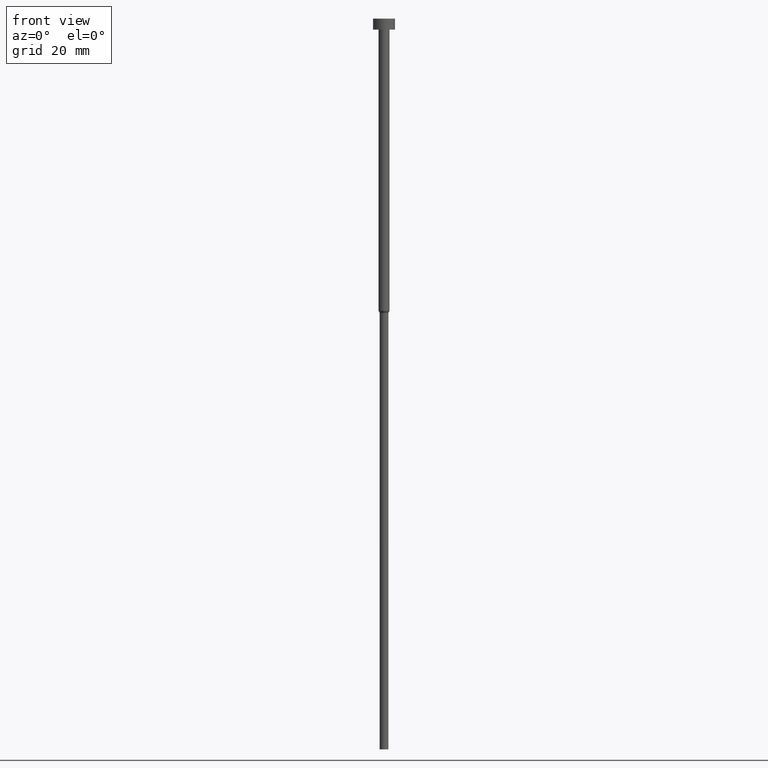
[diagram: clean part render]
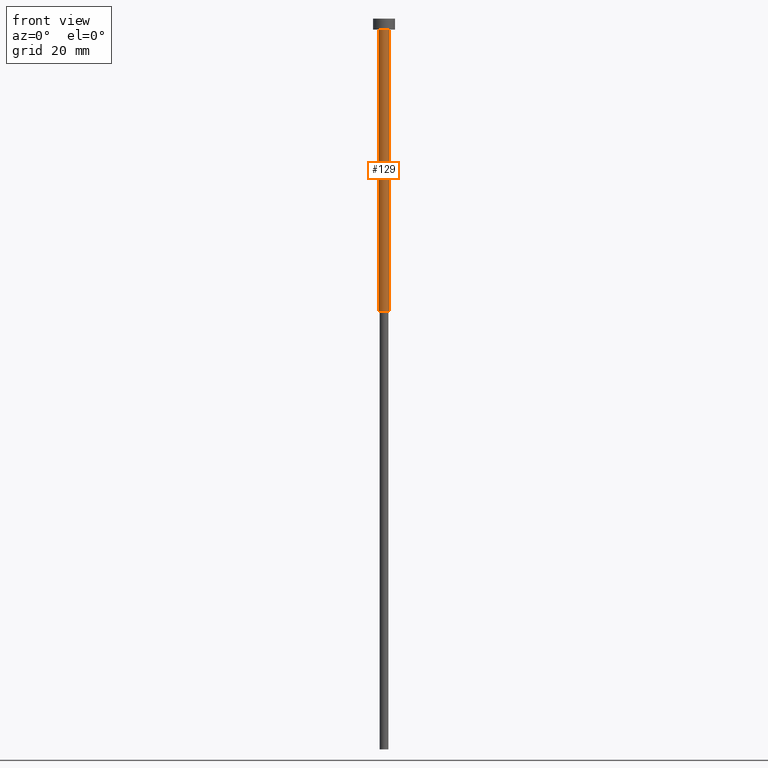
[diagram: same view with one face highlighted and labeled with its STEP entity id]
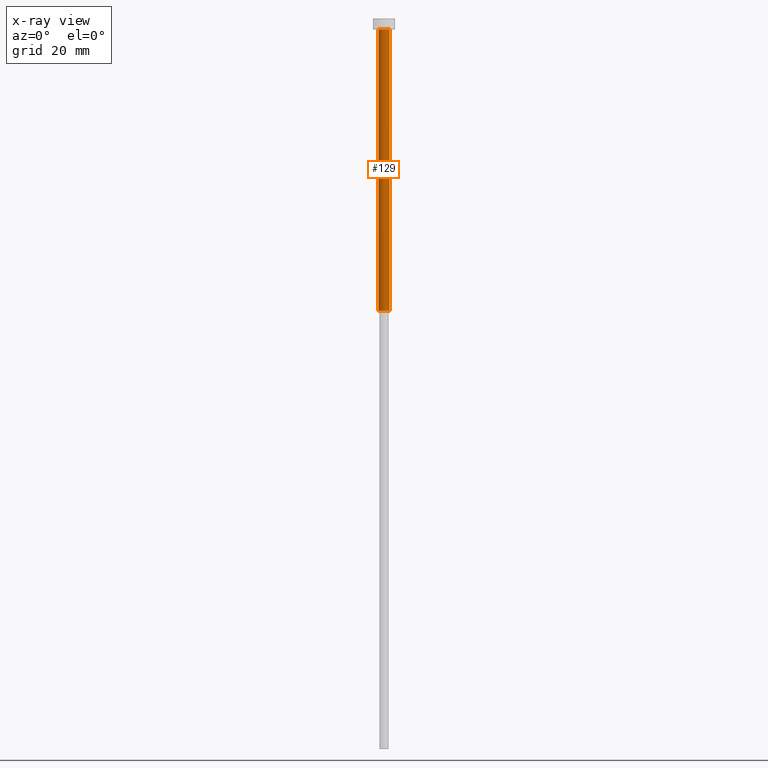
[diagram: x-ray of the same camera — body ghosted, the highlighted face saturated]
A machine part, front view. The second image highlights one B-rep face of the part: STEP entity #129.
The next image is the same camera in x-ray: the body ghosted, the highlighted face saturated — about 0% of this face is hidden behind the body in this view.
In plain terms, the highlighted cylindrical surface (edge-blend (fillet) strip) has radius 1.5 mm, axis along (-0, -0, 1).
Its self-contained STEP definition (entity closure, byte-faithful):
#4 = DIRECTION ( 'NONE',  ( -0.000000000000000000, -0.000000000000000000, 1.000000000000000000 ) ) ;
#7 = EDGE_CURVE ( 'NONE', #352, #171, #114, .T. ) ;
#12 = EDGE_CURVE ( 'NONE', #352, #289, #100, .T. ) ;
#41 = CARTESIAN_POINT ( 'NONE',  ( -1.500000000000000000, 1.836970198721029934E-16, 0.000000000000000000 ) ) ;
#45 = DIRECTION ( 'NONE',  ( 1.000000000000000000, 0.000000000000000000, 0.000000000000000000 ) ) ;
#86 = CARTESIAN_POINT ( 'NONE',  ( 0.000000000000000000, 0.000000000000000000, 0.000000000000000000 ) ) ;
#89 = DIRECTION ( 'NONE',  ( 1.000000000000000000, 0.000000000000000000, 0.000000000000000000 ) ) ;
#95 = DIRECTION ( 'NONE',  ( -0.000000000000000000, -0.000000000000000000, 1.000000000000000000 ) ) ;
#100 = LINE ( 'NONE', #41, #133 ) ;
#101 = LINE ( 'NONE', #263, #300 ) ;
#110 = FACE_OUTER_BOUND ( 'NONE', #326, .T. ) ;
#114 = CIRCLE ( 'NONE', #226, 1.500000000000000000 ) ;
#119 = VERTEX_POINT ( 'NONE', #215 ) ;
#124 = DIRECTION ( 'NONE',  ( 1.000000000000000000, 0.000000000000000000, 0.000000000000000000 ) ) ;
#128 = ORIENTED_EDGE ( 'NONE', *, *, #282, .F. ) ;
#129 = ADVANCED_FACE ( 'NONE', ( #110 ), #218, .T. ) ;
#133 = VECTOR ( 'NONE', #4, 1000.000000000000000 ) ;
#171 = VERTEX_POINT ( 'NONE', #207 ) ;
#174 = AXIS2_PLACEMENT_3D ( 'NONE', #86, #324, #89 ) ;
#186 = ORIENTED_EDGE ( 'NONE', *, *, #12, .F. ) ;
#207 = CARTESIAN_POINT ( 'NONE',  ( 1.500000000000000000, 0.000000000000000000, -80.00000000000000000 ) ) ;
#212 = EDGE_CURVE ( 'NONE', #171, #119, #101, .T. ) ;
#215 = CARTESIAN_POINT ( 'NONE',  ( 1.500000000000000000, 0.000000000000000000, -3.000000000000000888 ) ) ;
#218 = CYLINDRICAL_SURFACE ( 'NONE', #174, 1.500000000000000000 ) ;
#226 = AXIS2_PLACEMENT_3D ( 'NONE', #238, #337, #124 ) ;
#238 = CARTESIAN_POINT ( 'NONE',  ( 0.000000000000000000, 0.000000000000000000, -80.00000000000000000 ) ) ;
#239 = ORIENTED_EDGE ( 'NONE', *, *, #212, .T. ) ;
#259 = ORIENTED_EDGE ( 'NONE', *, *, #7, .T. ) ;
#261 = CARTESIAN_POINT ( 'NONE',  ( 0.000000000000000000, 0.000000000000000000, -3.000000000000000888 ) ) ;
#263 = CARTESIAN_POINT ( 'NONE',  ( 1.500000000000000000, 0.000000000000000000, 0.000000000000000000 ) ) ;
#272 = AXIS2_PLACEMENT_3D ( 'NONE', #261, #95, #45 ) ;
#274 = CARTESIAN_POINT ( 'NONE',  ( -1.500000000000000000, 1.836970198721029934E-16, -80.00000000000000000 ) ) ;
#282 = EDGE_CURVE ( 'NONE', #289, #119, #284, .T. ) ;
#284 = CIRCLE ( 'NONE', #272, 1.500000000000000000 ) ;
#289 = VERTEX_POINT ( 'NONE', #313 ) ;
#290 = DIRECTION ( 'NONE',  ( -0.000000000000000000, -0.000000000000000000, 1.000000000000000000 ) ) ;
#300 = VECTOR ( 'NONE', #290, 1000.000000000000000 ) ;
#313 = CARTESIAN_POINT ( 'NONE',  ( -1.500000000000000000, 1.836970198721029934E-16, -3.000000000000000888 ) ) ;
#324 = DIRECTION ( 'NONE',  ( -0.000000000000000000, -0.000000000000000000, 1.000000000000000000 ) ) ;
#326 = EDGE_LOOP ( 'NONE', ( #186, #259, #239, #128 ) ) ;
#337 = DIRECTION ( 'NONE',  ( -0.000000000000000000, -0.000000000000000000, 1.000000000000000000 ) ) ;
#352 = VERTEX_POINT ( 'NONE', #274 ) ;